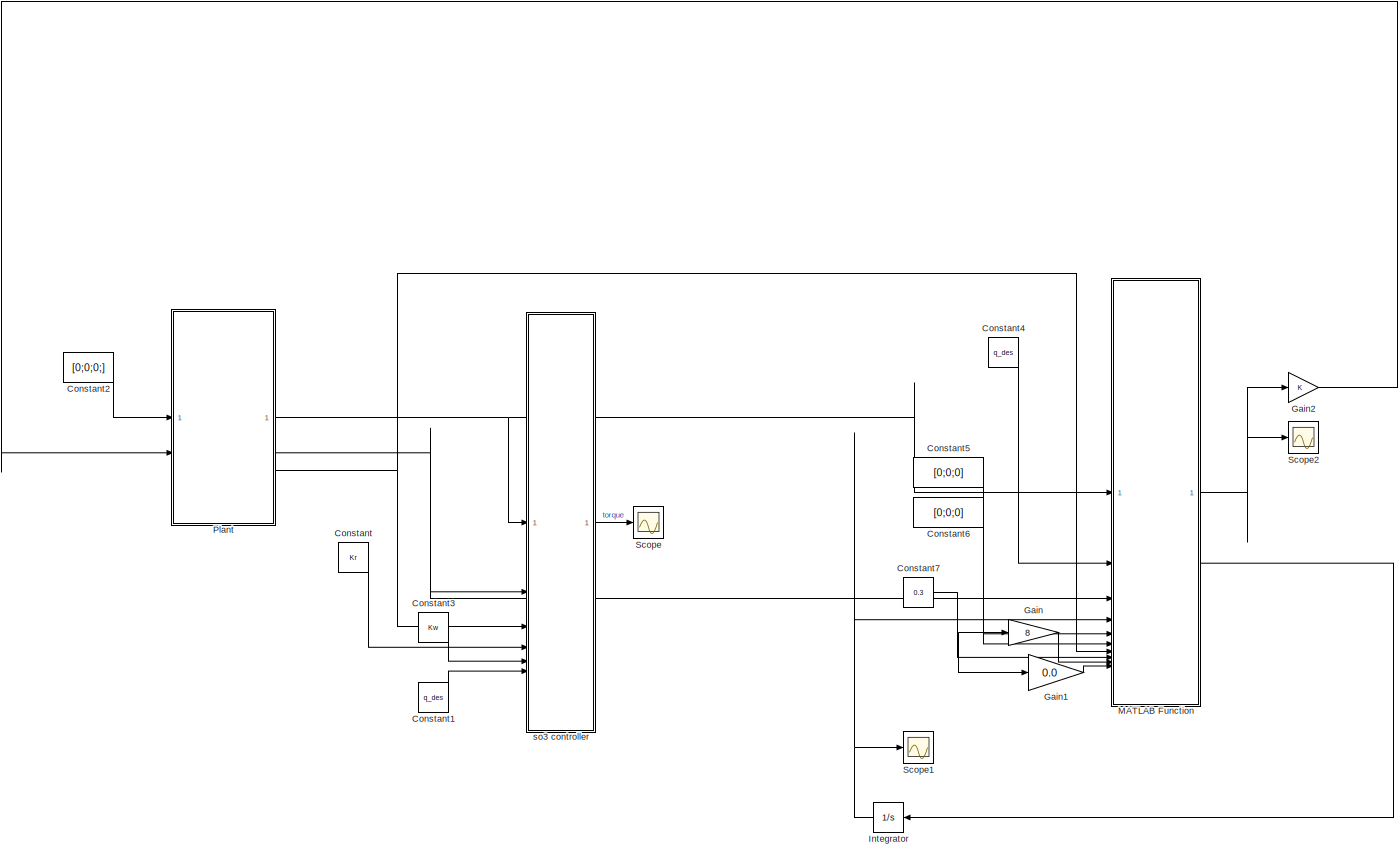
[diagram: root canvas - part 1/1, most of the canvas]
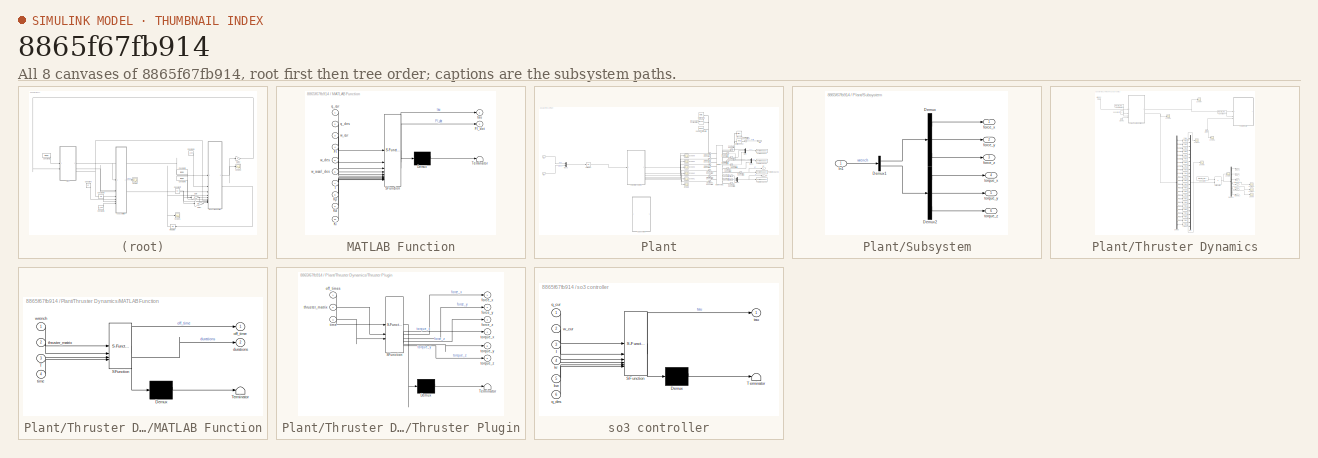
[diagram: thumbnail index - all 8 canvases of the model, root first then tree order]
MODEL slx_8865f67fb914
KIND model
CONFIG AbsTol = auto
CONFIG EnableMultiTasking = off
CONFIG FixedStep = 0.0001
CONFIG MaxStep = auto
CONFIG MinStep = auto
CONFIG RelTol = 1e-3
CONFIG SampleTimeConstraint = Unconstrained
CONFIG SolverName = FixedStepAuto
CONFIG StartTime = 0.0
CONFIG StopTime = 80
BLOCK [Constant] Constant
  Value = Kr
BLOCK [Constant] Constant1
  Value = q_des
BLOCK [Constant] Constant2
  Value = [0;0;0;]
BLOCK [Constant] Constant3
  Value = Kw
BLOCK [Constant] Constant4
  Value = q_des
BLOCK [Constant] Constant5
  Value = [0;0;0]
BLOCK [Constant] Constant6
  Value = [0;0;0]
BLOCK [Constant] Constant7
  Value = 0.3
BLOCK [Gain] Gain
  Gain = 8
BLOCK [Gain] Gain1
  Gain = 0.0
BLOCK [Gain] Gain2
BLOCK [Integrator] Integrator
  InitialCondition = [0;0;0]
  NameLocation = top
BLOCK [SubSystem] MATLAB Function
  ErrorFcn = Stateflow.Translate.translate
  PermitHierarchicalResolution = ExplicitOnly
  SFBlockType = MATLAB Function
  SystemSampleTime = T
  TreatAsAtomicUnit = on
BLOCK [Demux] MATLAB Function/ Demux 
  Outputs = 1
BLOCK [S-Function] MATLAB Function/ SFunction 
  EnableBusSupport = on
  FunctionName = sf_sfun
  PortCounts = [10 3]
  SFcnIsStateOwnerBlock = off
  SFunctionDeploymentMode = off
  Tag = Stateflow S-Function 4
BLOCK [Terminator] MATLAB Function/ Terminator 
BLOCK [Inport] MATLAB Function/FI
  Port = 4
BLOCK [Outport] MATLAB Function/FI_dot
  Port = 2
BLOCK [Inport] MATLAB Function/I
  Port = 7
BLOCK [Inport] MATLAB Function/Kd
  Port = 9
BLOCK [Inport] MATLAB Function/Ki
  Port = 10
BLOCK [Inport] MATLAB Function/Kp
  Port = 8
BLOCK [Inport] MATLAB Function/q_cur
BLOCK [Inport] MATLAB Function/q_des
  Port = 2
BLOCK [Outport] MATLAB Function/tau
BLOCK [Inport] MATLAB Function/w_accel_des
  Port = 6
BLOCK [Inport] MATLAB Function/w_cur
  Port = 3
BLOCK [Inport] MATLAB Function/w_des
  Port = 5
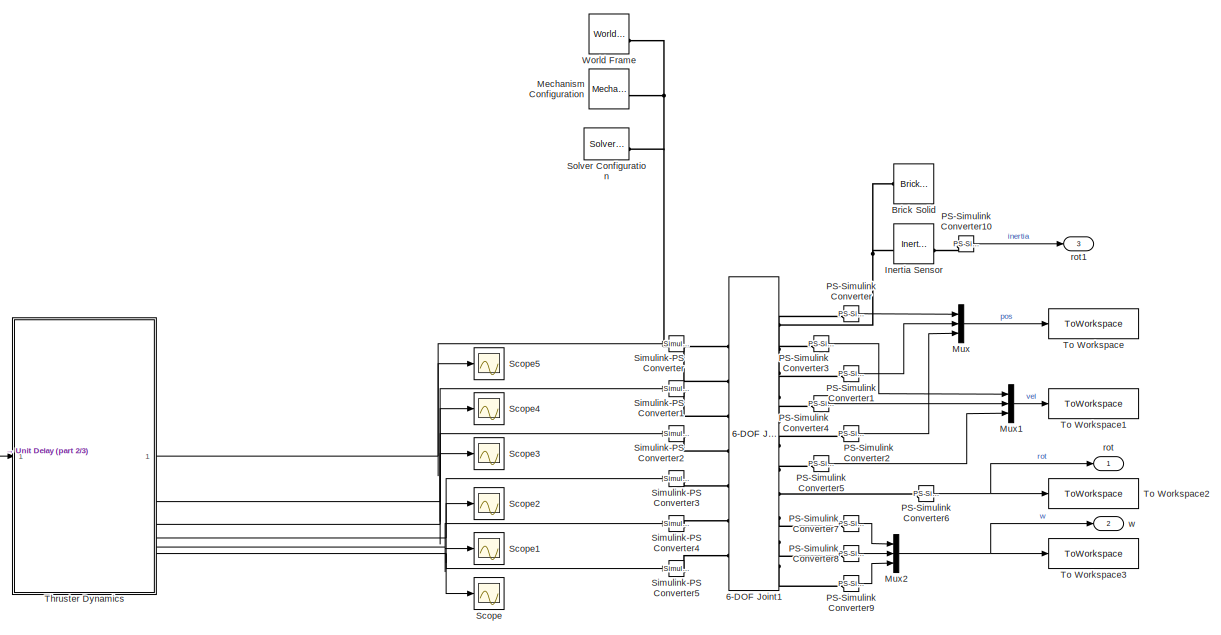
[diagram: Plant - part 1/3, middle right region]
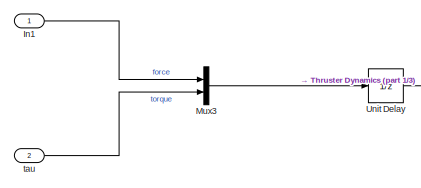
[diagram: Plant - part 2/3, middle left region]
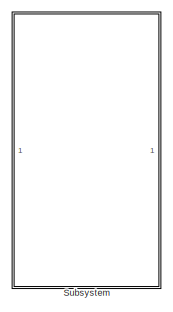
[diagram: Plant - part 3/3, bottom center region]
BLOCK [SubSystem] Plant
BLOCK [Reference] Plant/6-DOF Joint1  REF=sm_lib/Joints/6-DOF Joint
  SourceBlock = sm_lib/Joints/6-DOF Joint
  SourceType = 6-DOF Joint
BLOCK [Reference] Plant/Brick Solid  REF=sm_lib/Body Elements/Brick Solid
  SourceBlock = sm_lib/Body Elements/Brick Solid
  SourceType = Brick Solid
BLOCK [Inport] Plant/In1
  IconDisplay = Signal name
BLOCK [Reference] Plant/Inertia Sensor  REF=sm_lib/Body Elements/Inertia Sensor
  SourceBlock = sm_lib/Body Elements/Inertia Sensor
  SourceType = Inertia Sensor
BLOCK [Reference] Plant/Mechanism Configuration  REF=sm_lib/Utilities/Mechanism
Configuration
  SourceBlock = sm_lib/Utilities/Mechanism\nConfiguration
  SourceType = Mechanism\nConfiguration
BLOCK [Mux] Plant/Mux
  DisplayOption = bar
  Inputs = 3
BLOCK [Mux] Plant/Mux1
  DisplayOption = bar
  Inputs = 3
BLOCK [Mux] Plant/Mux2
  DisplayOption = bar
  Inputs = 3
BLOCK [Mux] Plant/Mux3
  DisplayOption = bar
  Inputs = 2
BLOCK [Reference] Plant/PS-Simulink Converter  REF=nesl_utility/PS-Simulink
Converter
  SourceBlock = nesl_utility/PS-Simulink\nConverter
  SourceType = PS-Simulink\nConverter
BLOCK [Reference] Plant/PS-Simulink Converter1  REF=nesl_utility/PS-Simulink
Converter
  SourceBlock = nesl_utility/PS-Simulink\nConverter
  SourceType = PS-Simulink\nConverter
BLOCK [Reference] Plant/PS-Simulink Converter10  REF=nesl_utility/PS-Simulink
Converter
  SourceBlock = nesl_utility/PS-Simulink\nConverter
  SourceType = PS-Simulink\nConverter
BLOCK [Reference] Plant/PS-Simulink Converter2  REF=nesl_utility/PS-Simulink
Converter
  SourceBlock = nesl_utility/PS-Simulink\nConverter
  SourceType = PS-Simulink\nConverter
BLOCK [Reference] Plant/PS-Simulink Converter3  REF=nesl_utility/PS-Simulink
Converter
  SourceBlock = nesl_utility/PS-Simulink\nConverter
  SourceType = PS-Simulink\nConverter
BLOCK [Reference] Plant/PS-Simulink Converter4  REF=nesl_utility/PS-Simulink
Converter
  SourceBlock = nesl_utility/PS-Simulink\nConverter
  SourceType = PS-Simulink\nConverter
BLOCK [Reference] Plant/PS-Simulink Converter5  REF=nesl_utility/PS-Simulink
Converter
  SourceBlock = nesl_utility/PS-Simulink\nConverter
  SourceType = PS-Simulink\nConverter
BLOCK [Reference] Plant/PS-Simulink Converter6  REF=nesl_utility/PS-Simulink
Converter
  SourceBlock = nesl_utility/PS-Simulink\nConverter
  SourceType = PS-Simulink\nConverter
BLOCK [Reference] Plant/PS-Simulink Converter7  REF=nesl_utility/PS-Simulink
Converter
  SourceBlock = nesl_utility/PS-Simulink\nConverter
  SourceType = PS-Simulink\nConverter
BLOCK [Reference] Plant/PS-Simulink Converter8  REF=nesl_utility/PS-Simulink
Converter
  SourceBlock = nesl_utility/PS-Simulink\nConverter
  SourceType = PS-Simulink\nConverter
BLOCK [Reference] Plant/PS-Simulink Converter9  REF=nesl_utility/PS-Simulink
Converter
  SourceBlock = nesl_utility/PS-Simulink\nConverter
  SourceType = PS-Simulink\nConverter
BLOCK [Scope] Plant/Scope
  Floating = off
  NumInputPorts = 1
  ScopeSpecificationString = Simulink.scopes.TimeScopeBlockCfg('CurrentConfiguration', extmgr.ConfigurationSet(extmgr.Configuration('Core','General UI',true),extmgr.Configuration('Core','Source UI',true),extmgr.Configuration('Sources','WiredSimulink',true,'DataLoggingVariableName','ScopeData1'),extmgr.Configuration('Visuals','Time Domain',true,'SerializedDisplays',{struct('MinYLimReal','-0.04375','MaxYLimReal','0.04375','YLab...<+1509ch>
BLOCK [Scope] Plant/Scope1
  Floating = off
  NumInputPorts = 1
  ScopeSpecificationString = Simulink.scopes.TimeScopeBlockCfg('CurrentConfiguration', extmgr.ConfigurationSet(extmgr.Configuration('Core','General UI',true),extmgr.Configuration('Core','Source UI',true),extmgr.Configuration('Sources','WiredSimulink',true,'DataLoggingVariableName','ScopeData2'),extmgr.Configuration('Visuals','Time Domain',true,'SerializedDisplays',{struct('MinYLimReal','-0.04375','MaxYLimReal','0.04375','YLab...<+1509ch>
BLOCK [Scope] Plant/Scope2
  Floating = off
  NumInputPorts = 1
  ScopeSpecificationString = Simulink.scopes.TimeScopeBlockCfg('CurrentConfiguration', extmgr.ConfigurationSet(extmgr.Configuration('Core','General UI',true),extmgr.Configuration('Core','Source UI',true),extmgr.Configuration('Sources','WiredSimulink',true,'DataLoggingVariableName','ScopeData3'),extmgr.Configuration('Visuals','Time Domain',true,'SerializedDisplays',{struct('MinYLimReal','-0.38663','MaxYLimReal','0.38993','YLab...<+1553ch>
BLOCK [Scope] Plant/Scope3
  Floating = off
  NumInputPorts = 1
  ScopeSpecificationString = Simulink.scopes.TimeScopeBlockCfg('CurrentConfiguration', extmgr.ConfigurationSet(extmgr.Configuration('Core','General UI',true),extmgr.Configuration('Core','Source UI',true),extmgr.Configuration('Sources','WiredSimulink',true,'DataLoggingVariableName','ScopeData4'),extmgr.Configuration('Visuals','Time Domain',true,'SerializedDisplays',{struct('MinYLimReal','-1.00000','MaxYLimReal','1.00000','YLab...<+1522ch>
BLOCK [Scope] Plant/Scope4
  Floating = off
  NumInputPorts = 1
  ScopeSpecificationString = Simulink.scopes.TimeScopeBlockCfg('CurrentConfiguration', extmgr.ConfigurationSet(extmgr.Configuration('Core','General UI',true),extmgr.Configuration('Core','Source UI',true),extmgr.Configuration('Sources','WiredSimulink',true,'DataLoggingVariableName','ScopeData5'),extmgr.Configuration('Visuals','Time Domain',true,'SerializedDisplays',{struct('MinYLimReal','-1.00000','MaxYLimReal','1.00000','YLab...<+1528ch>
BLOCK [Scope] Plant/Scope5
  Floating = off
  NumInputPorts = 1
  ScopeSpecificationString = Simulink.scopes.TimeScopeBlockCfg('CurrentConfiguration', extmgr.ConfigurationSet(extmgr.Configuration('Core','General UI',true),extmgr.Configuration('Core','Source UI',true),extmgr.Configuration('Sources','WiredSimulink',true,'DataLoggingVariableName','ScopeData6'),extmgr.Configuration('Visuals','Time Domain',true,'SerializedDisplays',{struct('MinYLimReal','-1.00000','MaxYLimReal','1.00000','YLab...<+1509ch>
BLOCK [Reference] Plant/Simulink-PS Converter  REF=nesl_utility/Simulink-PS
Converter
  SourceBlock = nesl_utility/Simulink-PS\nConverter
  SourceType = Simulink-PS\nConverter
BLOCK [Reference] Plant/Simulink-PS Converter1  REF=nesl_utility/Simulink-PS
Converter
  SourceBlock = nesl_utility/Simulink-PS\nConverter
  SourceType = Simulink-PS\nConverter
BLOCK [Reference] Plant/Simulink-PS Converter2  REF=nesl_utility/Simulink-PS
Converter
  SourceBlock = nesl_utility/Simulink-PS\nConverter
  SourceType = Simulink-PS\nConverter
BLOCK [Reference] Plant/Simulink-PS Converter3  REF=nesl_utility/Simulink-PS
Converter
  SourceBlock = nesl_utility/Simulink-PS\nConverter
  SourceType = Simulink-PS\nConverter
BLOCK [Reference] Plant/Simulink-PS Converter4  REF=nesl_utility/Simulink-PS
Converter
  SourceBlock = nesl_utility/Simulink-PS\nConverter
  SourceType = Simulink-PS\nConverter
BLOCK [Reference] Plant/Simulink-PS Converter5  REF=nesl_utility/Simulink-PS
Converter
  SourceBlock = nesl_utility/Simulink-PS\nConverter
  SourceType = Simulink-PS\nConverter
BLOCK [Reference] Plant/Solver Configuration  REF=nesl_utility/Solver
Configuration
  SourceBlock = nesl_utility/Solver\nConfiguration
  SourceType = Solver\nConfiguration
BLOCK [SubSystem] Plant/Subsystem
  Commented = on
BLOCK [Demux] Plant/Subsystem/Demux
  Outputs = 3
BLOCK [Demux] Plant/Subsystem/Demux1
  Outputs = 2
BLOCK [Demux] Plant/Subsystem/Demux2
  Outputs = 3
BLOCK [Inport] Plant/Subsystem/In1
  IconDisplay = Signal name
BLOCK [Outport] Plant/Subsystem/force_x
BLOCK [Outport] Plant/Subsystem/force_y
  Port = 2
BLOCK [Outport] Plant/Subsystem/force_z
  Port = 3
BLOCK [Outport] Plant/Subsystem/torque_x
  Port = 4
BLOCK [Outport] Plant/Subsystem/torque_y
  Port = 5
BLOCK [Outport] Plant/Subsystem/torque_z
  Port = 6
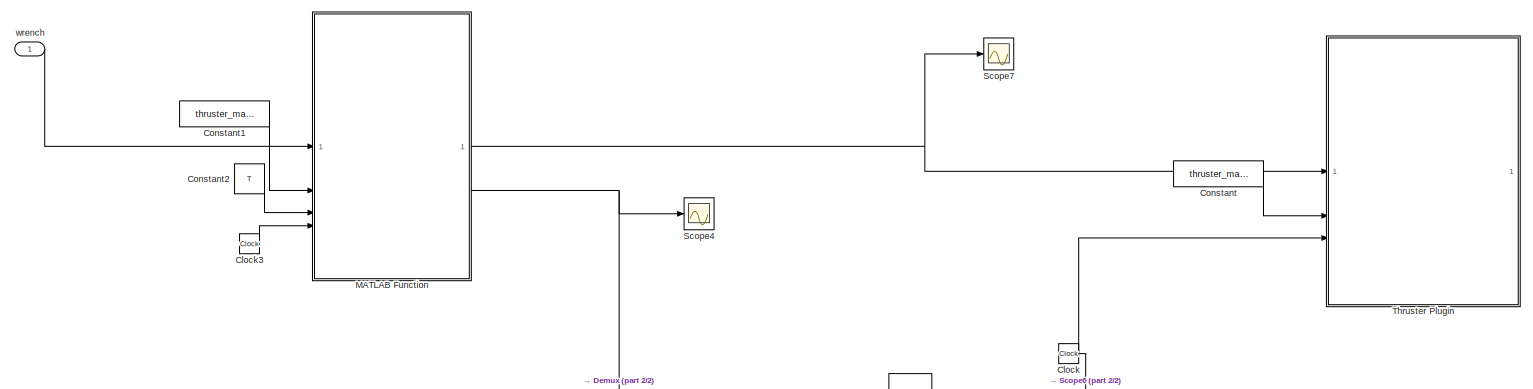
[diagram: Plant/Thruster Dynamics - part 1/2, full width, top band]
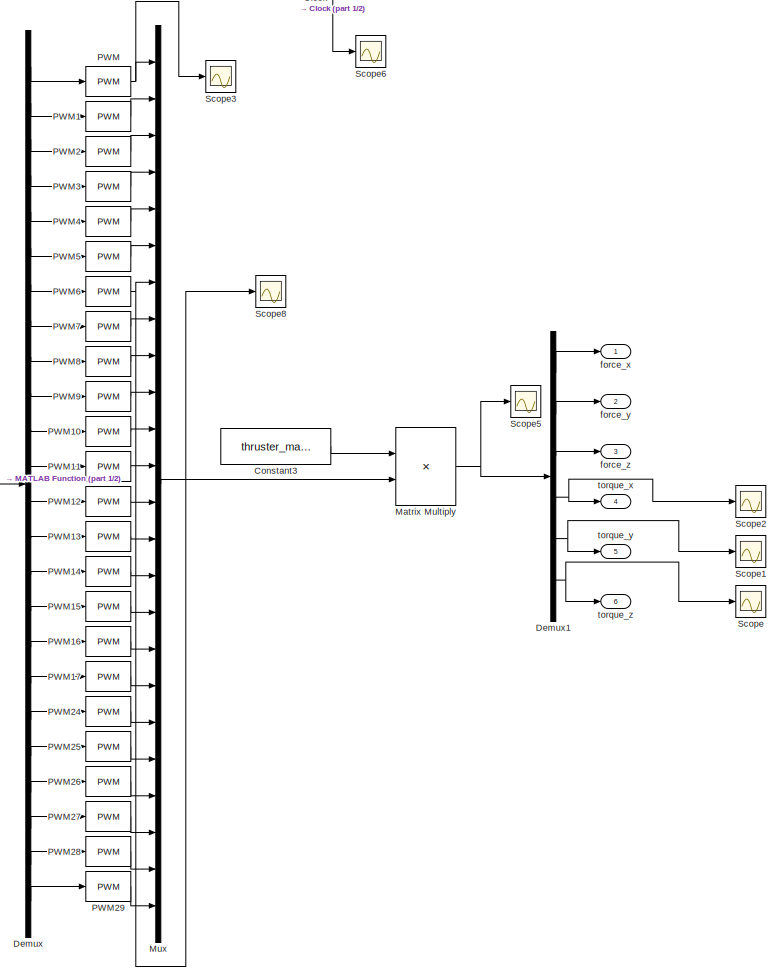
[diagram: Plant/Thruster Dynamics - part 2/2, middle right region]
BLOCK [SubSystem] Plant/Thruster Dynamics
BLOCK [Clock] Plant/Thruster Dynamics/Clock
  Commented = on
BLOCK [Clock] Plant/Thruster Dynamics/Clock3
BLOCK [Constant] Plant/Thruster Dynamics/Constant
  Commented = on
  Value = thruster_matrix
BLOCK [Constant] Plant/Thruster Dynamics/Constant1
  Value = thruster_matrix
BLOCK [Constant] Plant/Thruster Dynamics/Constant2
  Value = T
BLOCK [Constant] Plant/Thruster Dynamics/Constant3
  Value = thruster_matrix
BLOCK [Demux] Plant/Thruster Dynamics/Demux
  Outputs = 24
BLOCK [Demux] Plant/Thruster Dynamics/Demux1
  Outputs = 6
BLOCK [SubSystem] Plant/Thruster Dynamics/MATLAB Function
  ErrorFcn = Stateflow.Translate.translate
  PermitHierarchicalResolution = ExplicitOnly
  SFBlockType = MATLAB Function
  SystemSampleTime = T
  TreatAsAtomicUnit = on
BLOCK [Demux] Plant/Thruster Dynamics/MATLAB Function/ Demux 
  Outputs = 1
BLOCK [S-Function] Plant/Thruster Dynamics/MATLAB Function/ SFunction 
  EnableBusSupport = on
  FunctionName = sf_sfun
  PortCounts = [4 3]
  SFcnIsStateOwnerBlock = off
  SFunctionDeploymentMode = off
  Tag = Stateflow S-Function 3
BLOCK [Terminator] Plant/Thruster Dynamics/MATLAB Function/ Terminator 
BLOCK [Inport] Plant/Thruster Dynamics/MATLAB Function/T
  Port = 3
BLOCK [Outport] Plant/Thruster Dynamics/MATLAB Function/durations
  Port = 2
BLOCK [Outport] Plant/Thruster Dynamics/MATLAB Function/off_time
BLOCK [Inport] Plant/Thruster Dynamics/MATLAB Function/thruster_matrix
  Port = 2
BLOCK [Inport] Plant/Thruster Dynamics/MATLAB Function/time
  Port = 4
BLOCK [Inport] Plant/Thruster Dynamics/MATLAB Function/wrench
BLOCK [Product] Plant/Thruster Dynamics/Matrix Multiply
  Multiplication = Matrix(*)
BLOCK [Mux] Plant/Thruster Dynamics/Mux
  DisplayOption = bar
  Inputs = 24
BLOCK [Reference] Plant/Thruster Dynamics/PWM  REF=simulink/Discontinuities/PWM
  DisableCoverage = on
  SourceBlock = simulink/Discontinuities/PWM
  SourceType = PWM
BLOCK [Reference] Plant/Thruster Dynamics/PWM1  REF=simulink/Discontinuities/PWM
  DisableCoverage = on
  SourceBlock = simulink/Discontinuities/PWM
  SourceType = PWM
BLOCK [Reference] Plant/Thruster Dynamics/PWM10  REF=simulink/Discontinuities/PWM
  DisableCoverage = on
  SourceBlock = simulink/Discontinuities/PWM
  SourceType = PWM
BLOCK [Reference] Plant/Thruster Dynamics/PWM11  REF=simulink/Discontinuities/PWM
  DisableCoverage = on
  SourceBlock = simulink/Discontinuities/PWM
  SourceType = PWM
BLOCK [Reference] Plant/Thruster Dynamics/PWM12  REF=simulink/Discontinuities/PWM
  DisableCoverage = on
  SourceBlock = simulink/Discontinuities/PWM
  SourceType = PWM
BLOCK [Reference] Plant/Thruster Dynamics/PWM13  REF=simulink/Discontinuities/PWM
  DisableCoverage = on
  SourceBlock = simulink/Discontinuities/PWM
  SourceType = PWM
BLOCK [Reference] Plant/Thruster Dynamics/PWM14  REF=simulink/Discontinuities/PWM
  DisableCoverage = on
  SourceBlock = simulink/Discontinuities/PWM
  SourceType = PWM
BLOCK [Reference] Plant/Thruster Dynamics/PWM15  REF=simulink/Discontinuities/PWM
  DisableCoverage = on
  SourceBlock = simulink/Discontinuities/PWM
  SourceType = PWM
BLOCK [Reference] Plant/Thruster Dynamics/PWM16  REF=simulink/Discontinuities/PWM
  DisableCoverage = on
  SourceBlock = simulink/Discontinuities/PWM
  SourceType = PWM
BLOCK [Reference] Plant/Thruster Dynamics/PWM17  REF=simulink/Discontinuities/PWM
  DisableCoverage = on
  SourceBlock = simulink/Discontinuities/PWM
  SourceType = PWM
BLOCK [Reference] Plant/Thruster Dynamics/PWM2  REF=simulink/Discontinuities/PWM
  DisableCoverage = on
  SourceBlock = simulink/Discontinuities/PWM
  SourceType = PWM
BLOCK [Reference] Plant/Thruster Dynamics/PWM24  REF=simulink/Discontinuities/PWM
  DisableCoverage = on
  SourceBlock = simulink/Discontinuities/PWM
  SourceType = PWM
BLOCK [Reference] Plant/Thruster Dynamics/PWM25  REF=simulink/Discontinuities/PWM
  DisableCoverage = on
  SourceBlock = simulink/Discontinuities/PWM
  SourceType = PWM
BLOCK [Reference] Plant/Thruster Dynamics/PWM26  REF=simulink/Discontinuities/PWM
  DisableCoverage = on
  SourceBlock = simulink/Discontinuities/PWM
  SourceType = PWM
BLOCK [Reference] Plant/Thruster Dynamics/PWM27  REF=simulink/Discontinuities/PWM
  DisableCoverage = on
  SourceBlock = simulink/Discontinuities/PWM
  SourceType = PWM
BLOCK [Reference] Plant/Thruster Dynamics/PWM28  REF=simulink/Discontinuities/PWM
  DisableCoverage = on
  SourceBlock = simulink/Discontinuities/PWM
  SourceType = PWM
BLOCK [Reference] Plant/Thruster Dynamics/PWM29  REF=simulink/Discontinuities/PWM
  DisableCoverage = on
  SourceBlock = simulink/Discontinuities/PWM
  SourceType = PWM
BLOCK [Reference] Plant/Thruster Dynamics/PWM3  REF=simulink/Discontinuities/PWM
  DisableCoverage = on
  SourceBlock = simulink/Discontinuities/PWM
  SourceType = PWM
BLOCK [Reference] Plant/Thruster Dynamics/PWM4  REF=simulink/Discontinuities/PWM
  DisableCoverage = on
  SourceBlock = simulink/Discontinuities/PWM
  SourceType = PWM
BLOCK [Reference] Plant/Thruster Dynamics/PWM5  REF=simulink/Discontinuities/PWM
  DisableCoverage = on
  SourceBlock = simulink/Discontinuities/PWM
  SourceType = PWM
BLOCK [Reference] Plant/Thruster Dynamics/PWM6  REF=simulink/Discontinuities/PWM
  DisableCoverage = on
  SourceBlock = simulink/Discontinuities/PWM
  SourceType = PWM
BLOCK [Reference] Plant/Thruster Dynamics/PWM7  REF=simulink/Discontinuities/PWM
  DisableCoverage = on
  SourceBlock = simulink/Discontinuities/PWM
  SourceType = PWM
BLOCK [Reference] Plant/Thruster Dynamics/PWM8  REF=simulink/Discontinuities/PWM
  DisableCoverage = on
  SourceBlock = simulink/Discontinuities/PWM
  SourceType = PWM
BLOCK [Reference] Plant/Thruster Dynamics/PWM9  REF=simulink/Discontinuities/PWM
  DisableCoverage = on
  SourceBlock = simulink/Discontinuities/PWM
  SourceType = PWM
BLOCK [Scope] Plant/Thruster Dynamics/Scope
  Floating = off
  NumInputPorts = 1
  ScopeSpecificationString = Simulink.scopes.TimeScopeBlockCfg('CurrentConfiguration', extmgr.ConfigurationSet(extmgr.Configuration('Core','General UI',true),extmgr.Configuration('Core','Source UI',true),extmgr.Configuration('Sources','WiredSimulink',true,'DataLoggingVariableName','ScopeData3'),extmgr.Configuration('Visuals','Time Domain',true,'SerializedDisplays',{struct('MinYLimReal','-0.04375','MaxYLimReal','0.04375','YLab...<+1498ch>
BLOCK [Scope] Plant/Thruster Dynamics/Scope1
  Floating = off
  NumInputPorts = 1
  ScopeSpecificationString = Simulink.scopes.TimeScopeBlockCfg('CurrentConfiguration', extmgr.ConfigurationSet(extmgr.Configuration('Core','General UI',true),extmgr.Configuration('Core','Source UI',true),extmgr.Configuration('Sources','WiredSimulink',true,'DataLoggingVariableName','ScopeData4'),extmgr.Configuration('Visuals','Time Domain',true,'SerializedDisplays',{struct('MinYLimReal','-0.04375','MaxYLimReal','0.04375','YLab...<+1498ch>
BLOCK [Scope] Plant/Thruster Dynamics/Scope2
  Floating = off
  NumInputPorts = 1
  ScopeSpecificationString = Simulink.scopes.TimeScopeBlockCfg('CurrentConfiguration', extmgr.ConfigurationSet(extmgr.Configuration('Core','General UI',true),extmgr.Configuration('Core','Source UI',true),extmgr.Configuration('Sources','WiredSimulink',true,'DataLoggingVariableName','ScopeData5'),extmgr.Configuration('Visuals','Time Domain',true,'SerializedDisplays',{struct('MinYLimReal','-0.04375','MaxYLimReal','0.04375','YLab...<+1498ch>
BLOCK [Scope] Plant/Thruster Dynamics/Scope3
  Floating = off
  NumInputPorts = 1
  ScopeSpecificationString = Simulink.scopes.TimeScopeBlockCfg('CurrentConfiguration', extmgr.ConfigurationSet(extmgr.Configuration('Core','General UI',true),extmgr.Configuration('Core','Source UI',true),extmgr.Configuration('Sources','WiredSimulink',true,'DataLoggingVariableName','ScopeData6'),extmgr.Configuration('Visuals','Time Domain',true,'SerializedDisplays',{struct('MinYLimReal','-0.125','MaxYLimReal','1.125','YLabelRe...<+1494ch>
BLOCK [Scope] Plant/Thruster Dynamics/Scope4
  Floating = off
  NumInputPorts = 1
  ScopeSpecificationString = Simulink.scopes.TimeScopeBlockCfg('CurrentConfiguration', extmgr.ConfigurationSet(extmgr.Configuration('Core','General UI',true),extmgr.Configuration('Core','Source UI',true),extmgr.Configuration('Sources','WiredSimulink',true,'DataLoggingVariableName','ScopeData7'),extmgr.Configuration('Visuals','Time Domain',true,'SerializedDisplays',{struct('MinYLimReal','-0.00437','MaxYLimReal','0.03937','YLab...<+2234ch>
BLOCK [Scope] Plant/Thruster Dynamics/Scope5
  Floating = off
  NumInputPorts = 1
  ScopeSpecificationString = Simulink.scopes.TimeScopeBlockCfg('CurrentConfiguration', extmgr.ConfigurationSet(extmgr.Configuration('Core','General UI',true),extmgr.Configuration('Core','Source UI',true),extmgr.Configuration('Sources','WiredSimulink',true,'DataLoggingVariableName','ScopeData8'),extmgr.Configuration('Visuals','Time Domain',true,'SerializedDisplays',{struct('MinYLimReal','-0.04375','MaxYLimReal','0.04375','YLab...<+1620ch>
BLOCK [Scope] Plant/Thruster Dynamics/Scope6
  Commented = on
  Floating = off
  NumInputPorts = 1
  ScopeSpecificationString = Simulink.scopes.TimeScopeBlockCfg('CurrentConfiguration', extmgr.ConfigurationSet(extmgr.Configuration('Core','General UI',true),extmgr.Configuration('Core','Source UI',true),extmgr.Configuration('Sources','WiredSimulink',true,'DataLoggingVariableName','ScopeData7'),extmgr.Configuration('Visuals','Time Domain',true,'SerializedDisplays',{struct('MinYLimReal','-1.25','MaxYLimReal','11.25','YLabelRea...<+1481ch>
BLOCK [Scope] Plant/Thruster Dynamics/Scope7
  Commented = on
  Floating = off
  NumInputPorts = 1
  ScopeSpecificationString = Simulink.scopes.TimeScopeBlockCfg('CurrentConfiguration', extmgr.ConfigurationSet(extmgr.Configuration('Core','General UI',true),extmgr.Configuration('Core','Source UI',true),extmgr.Configuration('Sources','WiredSimulink',true,'DataLoggingVariableName','ScopeData8'),extmgr.Configuration('Visuals','Time Domain',true),extmgr.Configuration('Tools','Plot Navigation',true),extmgr.Configuration('Tools',...<+40ch>
BLOCK [Scope] Plant/Thruster Dynamics/Scope8
  Floating = off
  NumInputPorts = 1
  ScopeSpecificationString = Simulink.scopes.TimeScopeBlockCfg('CurrentConfiguration', extmgr.ConfigurationSet(extmgr.Configuration('Core','General UI',true),extmgr.Configuration('Core','Source UI',true),extmgr.Configuration('Sources','WiredSimulink',true,'DataLoggingVariableName','ScopeData9'),extmgr.Configuration('Visuals','Time Domain',true,'SerializedDisplays',{struct('MinYLimReal','-1.00000','MaxYLimReal','1.00000','YLab...<+1506ch>
BLOCK [SubSystem] Plant/Thruster Dynamics/Thruster Plugin
  Commented = on
  ErrorFcn = Stateflow.Translate.translate
  PermitHierarchicalResolution = ExplicitOnly
  SFBlockType = MATLAB Function
  TreatAsAtomicUnit = on
BLOCK [Demux] Plant/Thruster Dynamics/Thruster Plugin/ Demux 
  Outputs = 1
BLOCK [S-Function] Plant/Thruster Dynamics/Thruster Plugin/ SFunction 
  EnableBusSupport = on
  FunctionName = sf_sfun
  PortCounts = [3 7]
  SFcnIsStateOwnerBlock = off
  SFunctionDeploymentMode = off
  Tag = Stateflow S-Function 1
BLOCK [Terminator] Plant/Thruster Dynamics/Thruster Plugin/ Terminator 
BLOCK [Outport] Plant/Thruster Dynamics/Thruster Plugin/force_x
BLOCK [Outport] Plant/Thruster Dynamics/Thruster Plugin/force_y
  Port = 2
BLOCK [Outport] Plant/Thruster Dynamics/Thruster Plugin/force_z
  Port = 3
BLOCK [Inport] Plant/Thruster Dynamics/Thruster Plugin/off_times
BLOCK [Inport] Plant/Thruster Dynamics/Thruster Plugin/thruster_matrix
  Port = 2
BLOCK [Inport] Plant/Thruster Dynamics/Thruster Plugin/time
  Port = 3
BLOCK [Outport] Plant/Thruster Dynamics/Thruster Plugin/torque_x
  Port = 4
BLOCK [Outport] Plant/Thruster Dynamics/Thruster Plugin/torque_y
  Port = 5
BLOCK [Outport] Plant/Thruster Dynamics/Thruster Plugin/torque_z
  Port = 6
BLOCK [Outport] Plant/Thruster Dynamics/force_x
BLOCK [Outport] Plant/Thruster Dynamics/force_y
  Port = 2
BLOCK [Outport] Plant/Thruster Dynamics/force_z
  Port = 3
BLOCK [Outport] Plant/Thruster Dynamics/torque_x
  Port = 4
BLOCK [Outport] Plant/Thruster Dynamics/torque_y
  Port = 5
BLOCK [Outport] Plant/Thruster Dynamics/torque_z
  Port = 6
BLOCK [Inport] Plant/Thruster Dynamics/wrench
BLOCK [ToWorkspace] Plant/To Workspace
  FixptAsFi = on
  MaxDataPoints = inf
  SampleTime = -1
  VariableName = position
BLOCK [ToWorkspace] Plant/To Workspace1
  FixptAsFi = on
  MaxDataPoints = inf
  SampleTime = -1
  VariableName = velocity
BLOCK [ToWorkspace] Plant/To Workspace2
  FixptAsFi = on
  MaxDataPoints = inf
  SampleTime = -1
  VariableName = orientation
BLOCK [ToWorkspace] Plant/To Workspace3
  FixptAsFi = on
  MaxDataPoints = inf
  SampleTime = -1
  VariableName = angular_velocity
BLOCK [UnitDelay] Plant/Unit Delay
  HasFrameUpgradeWarning = on
  SampleTime = -1
BLOCK [Reference] Plant/World Frame  REF=sm_lib/Frames and
Transforms/World Frame
  SourceBlock = sm_lib/Frames and\nTransforms/World Frame
  SourceType = World Frame
BLOCK [Outport] Plant/rot
  IconDisplay = Signal name
BLOCK [Outport] Plant/rot1
  IconDisplay = Signal name
  Port = 3
BLOCK [Inport] Plant/tau
  IconDisplay = Signal name
  Port = 2
BLOCK [Outport] Plant/w
  IconDisplay = Signal name
  Port = 2
BLOCK [Scope] Scope
  Floating = off
  NumInputPorts = 1
  ScopeSpecificationString = Simulink.scopes.TimeScopeBlockCfg('CurrentConfiguration', extmgr.ConfigurationSet(extmgr.Configuration('Core','General UI',true),extmgr.Configuration('Core','Source UI',true),extmgr.Configuration('Sources','WiredSimulink',true),extmgr.Configuration('Visuals','Time Domain',true),extmgr.Configuration('Tools','Plot Navigation',true),extmgr.Configuration('Tools','Measurements',true)),'Version','2024b'...<+1ch>
BLOCK [Scope] Scope1
  Floating = off
  NumInputPorts = 1
  ScopeSpecificationString = Simulink.scopes.TimeScopeBlockCfg('CurrentConfiguration', extmgr.ConfigurationSet(extmgr.Configuration('Core','General UI',true),extmgr.Configuration('Core','Source UI',true),extmgr.Configuration('Sources','WiredSimulink',true,'DataLoggingVariableName','ScopeData1'),extmgr.Configuration('Visuals','Time Domain',true,'SerializedDisplays',{struct('MinYLimReal','-1033.14745','MaxYLimReal','990.23591',...<+1578ch>
BLOCK [Scope] Scope2
  Floating = off
  NumInputPorts = 1
  ScopeSpecificationString = Simulink.scopes.TimeScopeBlockCfg('CurrentConfiguration', extmgr.ConfigurationSet(extmgr.Configuration('Core','General UI',true),extmgr.Configuration('Core','Source UI',true),extmgr.Configuration('Sources','WiredSimulink',true,'DataLoggingVariableName','ScopeData2'),extmgr.Configuration('Visuals','Time Domain',true,'SerializedDisplays',{struct('MinYLimReal','-0.06436','MaxYLimReal','0.22829','YLab...<+1585ch>
BLOCK [SubSystem] so3 controller
  Commented = on
  ErrorFcn = Stateflow.Translate.translate
  PermitHierarchicalResolution = ExplicitOnly
  SFBlockType = MATLAB Function
  TreatAsAtomicUnit = on
BLOCK [Demux] so3 controller/ Demux 
  Outputs = 1
BLOCK [S-Function] so3 controller/ SFunction 
  EnableBusSupport = on
  FunctionName = sf_sfun
  PortCounts = [6 2]
  SFcnIsStateOwnerBlock = off
  SFunctionDeploymentMode = off
  Tag = Stateflow S-Function 2
BLOCK [Terminator] so3 controller/ Terminator 
BLOCK [Inport] so3 controller/I
  Port = 3
BLOCK [Inport] so3 controller/kr
  Port = 4
BLOCK [Inport] so3 controller/kw
  Port = 5
BLOCK [Inport] so3 controller/q_cur
BLOCK [Inport] so3 controller/q_des
  Port = 6
BLOCK [Outport] so3 controller/tau
BLOCK [Inport] so3 controller/w_cur
  Port = 2
LINE Constant1:1 -> so3 controller:6
LINE Constant2:1 -> Plant:1
LINE Constant3:1 -> so3 controller:5
LINE Constant4:1 -> MATLAB Function:2
LINE Constant5:1 -> MATLAB Function:5
LINE Constant6:1 -> MATLAB Function:6
NET Constant7:1 -> Gain1:1, Gain:1, MATLAB Function:8
LINE Constant:1 -> so3 controller:4
LINE Gain1:1 -> MATLAB Function:10
LINE Gain2:1 -> Plant:2
LINE Gain:1 -> MATLAB Function:9
NET Integrator:1 -> MATLAB Function:4, Scope1:1
NET MATLAB Function:1 -> Gain2:1, Scope2:1
LINE MATLAB Function:2 -> Integrator:1
LINE Plant/In1:1 -> Plant/Mux3:1
LINE Plant/Mux1:1 -> Plant/To Workspace1:1
NET Plant/Mux2:1 -> Plant/To Workspace3:1, Plant/w:1
LINE Plant/Mux3:1 -> Plant/Unit Delay:1
LINE Plant/Mux:1 -> Plant/To Workspace:1
LINE Plant/PS-Simulink Converter10:1 -> Plant/rot1:1
LINE Plant/PS-Simulink Converter1:1 -> Plant/Mux:2
LINE Plant/PS-Simulink Converter2:1 -> Plant/Mux:3
LINE Plant/PS-Simulink Converter3:1 -> Plant/Mux1:1
LINE Plant/PS-Simulink Converter4:1 -> Plant/Mux1:2
LINE Plant/PS-Simulink Converter5:1 -> Plant/Mux1:3
NET Plant/PS-Simulink Converter6:1 -> Plant/To Workspace2:1, Plant/rot:1
LINE Plant/PS-Simulink Converter7:1 -> Plant/Mux2:1
LINE Plant/PS-Simulink Converter8:1 -> Plant/Mux2:2
LINE Plant/PS-Simulink Converter9:1 -> Plant/Mux2:3
LINE Plant/PS-Simulink Converter:1 -> Plant/Mux:1
LINE Plant/Subsystem/Demux1:1 -> Plant/Subsystem/Demux:1
LINE Plant/Subsystem/Demux1:2 -> Plant/Subsystem/Demux2:1
LINE Plant/Subsystem/Demux2:1 -> Plant/Subsystem/torque_x:1
LINE Plant/Subsystem/Demux2:2 -> Plant/Subsystem/torque_y:1
LINE Plant/Subsystem/Demux2:3 -> Plant/Subsystem/torque_z:1
LINE Plant/Subsystem/Demux:1 -> Plant/Subsystem/force_x:1
LINE Plant/Subsystem/Demux:2 -> Plant/Subsystem/force_y:1
LINE Plant/Subsystem/Demux:3 -> Plant/Subsystem/force_z:1
LINE Plant/Subsystem/In1:1 -> Plant/Subsystem/Demux1:1
LINE Plant/Thruster Dynamics/Clock3:1 -> Plant/Thruster Dynamics/MATLAB Function:4
NET Plant/Thruster Dynamics/Clock:1 -> Plant/Thruster Dynamics/Scope6:1, Plant/Thruster Dynamics/Thruster Plugin:3
LINE Plant/Thruster Dynamics/Constant1:1 -> Plant/Thruster Dynamics/MATLAB Function:2
LINE Plant/Thruster Dynamics/Constant2:1 -> Plant/Thruster Dynamics/MATLAB Function:3
LINE Plant/Thruster Dynamics/Constant3:1 -> Plant/Thruster Dynamics/Matrix Multiply:1
LINE Plant/Thruster Dynamics/Constant:1 -> Plant/Thruster Dynamics/Thruster Plugin:2
LINE Plant/Thruster Dynamics/Demux1:1 -> Plant/Thruster Dynamics/force_x:1
LINE Plant/Thruster Dynamics/Demux1:2 -> Plant/Thruster Dynamics/force_y:1
LINE Plant/Thruster Dynamics/Demux1:3 -> Plant/Thruster Dynamics/force_z:1
NET Plant/Thruster Dynamics/Demux1:4 -> Plant/Thruster Dynamics/Scope2:1, Plant/Thruster Dynamics/torque_x:1
NET Plant/Thruster Dynamics/Demux1:5 -> Plant/Thruster Dynamics/Scope1:1, Plant/Thruster Dynamics/torque_y:1
NET Plant/Thruster Dynamics/Demux1:6 -> Plant/Thruster Dynamics/Scope:1, Plant/Thruster Dynamics/torque_z:1
LINE Plant/Thruster Dynamics/Demux:1 -> Plant/Thruster Dynamics/PWM:1
LINE Plant/Thruster Dynamics/Demux:10 -> Plant/Thruster Dynamics/PWM9:1
LINE Plant/Thruster Dynamics/Demux:11 -> Plant/Thruster Dynamics/PWM10:1
LINE Plant/Thruster Dynamics/Demux:12 -> Plant/Thruster Dynamics/PWM11:1
LINE Plant/Thruster Dynamics/Demux:13 -> Plant/Thruster Dynamics/PWM12:1
LINE Plant/Thruster Dynamics/Demux:14 -> Plant/Thruster Dynamics/PWM13:1
LINE Plant/Thruster Dynamics/Demux:15 -> Plant/Thruster Dynamics/PWM14:1
LINE Plant/Thruster Dynamics/Demux:16 -> Plant/Thruster Dynamics/PWM15:1
LINE Plant/Thruster Dynamics/Demux:17 -> Plant/Thruster Dynamics/PWM16:1
LINE Plant/Thruster Dynamics/Demux:18 -> Plant/Thruster Dynamics/PWM17:1
LINE Plant/Thruster Dynamics/Demux:19 -> Plant/Thruster Dynamics/PWM24:1
LINE Plant/Thruster Dynamics/Demux:2 -> Plant/Thruster Dynamics/PWM1:1
LINE Plant/Thruster Dynamics/Demux:20 -> Plant/Thruster Dynamics/PWM25:1
LINE Plant/Thruster Dynamics/Demux:21 -> Plant/Thruster Dynamics/PWM26:1
LINE Plant/Thruster Dynamics/Demux:22 -> Plant/Thruster Dynamics/PWM27:1
LINE Plant/Thruster Dynamics/Demux:23 -> Plant/Thruster Dynamics/PWM28:1
LINE Plant/Thruster Dynamics/Demux:24 -> Plant/Thruster Dynamics/PWM29:1
LINE Plant/Thruster Dynamics/Demux:3 -> Plant/Thruster Dynamics/PWM2:1
LINE Plant/Thruster Dynamics/Demux:4 -> Plant/Thruster Dynamics/PWM3:1
LINE Plant/Thruster Dynamics/Demux:5 -> Plant/Thruster Dynamics/PWM4:1
LINE Plant/Thruster Dynamics/Demux:6 -> Plant/Thruster Dynamics/PWM5:1
LINE Plant/Thruster Dynamics/Demux:7 -> Plant/Thruster Dynamics/PWM6:1
LINE Plant/Thruster Dynamics/Demux:8 -> Plant/Thruster Dynamics/PWM7:1
LINE Plant/Thruster Dynamics/Demux:9 -> Plant/Thruster Dynamics/PWM8:1
NET Plant/Thruster Dynamics/MATLAB Function:1 -> Plant/Thruster Dynamics/Scope7:1, Plant/Thruster Dynamics/Thruster Plugin:1
NET Plant/Thruster Dynamics/MATLAB Function:2 -> Plant/Thruster Dynamics/Demux:1, Plant/Thruster Dynamics/Scope4:1
NET Plant/Thruster Dynamics/Matrix Multiply:1 -> Plant/Thruster Dynamics/Demux1:1, Plant/Thruster Dynamics/Scope5:1
LINE Plant/Thruster Dynamics/Mux:1 -> Plant/Thruster Dynamics/Matrix Multiply:2
LINE Plant/Thruster Dynamics/PWM10:1 -> Plant/Thruster Dynamics/Mux:11
LINE Plant/Thruster Dynamics/PWM11:1 -> Plant/Thruster Dynamics/Mux:12
LINE Plant/Thruster Dynamics/PWM12:1 -> Plant/Thruster Dynamics/Mux:13
LINE Plant/Thruster Dynamics/PWM13:1 -> Plant/Thruster Dynamics/Mux:14
LINE Plant/Thruster Dynamics/PWM14:1 -> Plant/Thruster Dynamics/Mux:15
LINE Plant/Thruster Dynamics/PWM15:1 -> Plant/Thruster Dynamics/Mux:16
LINE Plant/Thruster Dynamics/PWM16:1 -> Plant/Thruster Dynamics/Mux:17
LINE Plant/Thruster Dynamics/PWM17:1 -> Plant/Thruster Dynamics/Mux:18
LINE Plant/Thruster Dynamics/PWM1:1 -> Plant/Thruster Dynamics/Mux:2
LINE Plant/Thruster Dynamics/PWM24:1 -> Plant/Thruster Dynamics/Mux:19
LINE Plant/Thruster Dynamics/PWM25:1 -> Plant/Thruster Dynamics/Mux:20
LINE Plant/Thruster Dynamics/PWM26:1 -> Plant/Thruster Dynamics/Mux:21
LINE Plant/Thruster Dynamics/PWM27:1 -> Plant/Thruster Dynamics/Mux:22
LINE Plant/Thruster Dynamics/PWM28:1 -> Plant/Thruster Dynamics/Mux:23
LINE Plant/Thruster Dynamics/PWM29:1 -> Plant/Thruster Dynamics/Mux:24
LINE Plant/Thruster Dynamics/PWM2:1 -> Plant/Thruster Dynamics/Mux:3
LINE Plant/Thruster Dynamics/PWM3:1 -> Plant/Thruster Dynamics/Mux:4
LINE Plant/Thruster Dynamics/PWM4:1 -> Plant/Thruster Dynamics/Mux:5
LINE Plant/Thruster Dynamics/PWM5:1 -> Plant/Thruster Dynamics/Mux:6
NET Plant/Thruster Dynamics/PWM6:1 -> Plant/Thruster Dynamics/Mux:7, Plant/Thruster Dynamics/Scope8:1
LINE Plant/Thruster Dynamics/PWM7:1 -> Plant/Thruster Dynamics/Mux:8
LINE Plant/Thruster Dynamics/PWM8:1 -> Plant/Thruster Dynamics/Mux:9
LINE Plant/Thruster Dynamics/PWM9:1 -> Plant/Thruster Dynamics/Mux:10
NET Plant/Thruster Dynamics/PWM:1 -> Plant/Thruster Dynamics/Mux:1, Plant/Thruster Dynamics/Scope3:1
LINE Plant/Thruster Dynamics/wrench:1 -> Plant/Thruster Dynamics/MATLAB Function:1
NET Plant/Thruster Dynamics:1 -> Plant/Scope5:1, Plant/Simulink-PS Converter:1
NET Plant/Thruster Dynamics:2 -> Plant/Scope4:1, Plant/Simulink-PS Converter1:1
NET Plant/Thruster Dynamics:3 -> Plant/Scope3:1, Plant/Simulink-PS Converter2:1
NET Plant/Thruster Dynamics:4 -> Plant/Scope2:1, Plant/Simulink-PS Converter3:1
NET Plant/Thruster Dynamics:5 -> Plant/Scope1:1, Plant/Simulink-PS Converter4:1
NET Plant/Thruster Dynamics:6 -> Plant/Scope:1, Plant/Simulink-PS Converter5:1
LINE Plant/Unit Delay:1 -> Plant/Thruster Dynamics:1
LINE Plant/tau:1 -> Plant/Mux3:2
NET Plant:1 -> MATLAB Function:1, so3 controller:1
NET Plant:2 -> MATLAB Function:3, so3 controller:2
NET Plant:3 -> MATLAB Function:7, so3 controller:3
LINE so3 controller:1 -> Scope:1
PNET net1: Plant/6-DOF Joint1:LConn1 -- Plant/Mechanism Configuration:RConn1 -- Plant/Solver Configuration:RConn1 -- Plant/World Frame:RConn1
PLINE Plant/6-DOF Joint1:LConn2 -- Plant/Simulink-PS Converter:RConn1
PLINE Plant/6-DOF Joint1:LConn3 -- Plant/Simulink-PS Converter1:RConn1
PLINE Plant/6-DOF Joint1:LConn4 -- Plant/Simulink-PS Converter2:RConn1
PLINE Plant/6-DOF Joint1:LConn5 -- Plant/Simulink-PS Converter3:RConn1
PLINE Plant/6-DOF Joint1:LConn6 -- Plant/Simulink-PS Converter4:RConn1
PLINE Plant/6-DOF Joint1:LConn7 -- Plant/Simulink-PS Converter5:RConn1
PNET net2: Plant/6-DOF Joint1:RConn1 -- Plant/Brick Solid:LConn1 -- Plant/Inertia Sensor:LConn1
PLINE Plant/6-DOF Joint1:RConn10 -- Plant/PS-Simulink Converter8:LConn1
PLINE Plant/6-DOF Joint1:RConn11 -- Plant/PS-Simulink Converter9:LConn1
PLINE Plant/6-DOF Joint1:RConn2 -- Plant/PS-Simulink Converter:LConn1
PLINE Plant/6-DOF Joint1:RConn3 -- Plant/PS-Simulink Converter3:LConn1
PLINE Plant/6-DOF Joint1:RConn4 -- Plant/PS-Simulink Converter1:LConn1
PLINE Plant/6-DOF Joint1:RConn5 -- Plant/PS-Simulink Converter4:LConn1
PLINE Plant/6-DOF Joint1:RConn6 -- Plant/PS-Simulink Converter2:LConn1
PLINE Plant/6-DOF Joint1:RConn7 -- Plant/PS-Simulink Converter5:LConn1
PLINE Plant/6-DOF Joint1:RConn8 -- Plant/PS-Simulink Converter6:LConn1
PLINE Plant/6-DOF Joint1:RConn9 -- Plant/PS-Simulink Converter7:LConn1
PLINE Plant/Inertia Sensor:RConn1 -- Plant/PS-Simulink Converter10:LConn1
note: NET lines group one-source signal fan-out (src -> all destinations, sorted); 1:1 wires keep LINE; PNET lines group multi-terminal physical nets as a canonical sorted terminal list (undirected conserving connections); 2-terminal nets keep the pairwise PLINE form
CHART Plant/Thruster Dynamics/Thruster Plugin states=1 transitions=1
  STATE_LABEL 'eML_blk_kernel()'
  STATE_LABEL 'SCRIPT:\nfunction [force_x, force_y, force_z, torque_x, torque_y, torque_z]= fcn(off_times, thruster_matrix, time)\n\nn_thrusters = length(off_times);\nfiring_thrusters = zeros(n_thrusters, n_thrusters);\n\nfor i = 1:n_thrusters\n    % disable thruster if it should not be fired\n    if off_times(i) > (time+0.002)\n        firing_thrusters(i, i) = 1;\n    end\nend\n\noutput = thruster_matrix * firing_thrusters;...<+182ch>'
CHART so3 controller states=1 transitions=1
  STATE_LABEL 'eML_blk_kernel()'
  STATE_LABEL "SCRIPT:\nfunction tau = fcn(q_cur, w_cur, I, kr, kw, q_des)\n\nw_des = [\n    0;\n    0;\n    0\n    ];\n\nR_cur = quat2rotm(q_cur');\nR_des = quat2rotm(q_des');\n\nR_e = R_des' * R_cur;\n\ntheta = acos((trace(R_e) - 1)/2);\nif abs(theta - pi) < 1e-3  % Near 180 degrees\n    % Special handling for numerical stability\n    q_err = quatmult(quatinv(q_des), q_cur);  % error quaternion\n    if q_err(1) < 0  % shortest ...<+288ch>"
CHART Plant/Thruster Dynamics/MATLAB Function states=1 transitions=1
  STATE_LABEL 'eML_blk_kernel()'
  STATE_LABEL "SCRIPT:\nfunction [off_time, durations]= fcn(wrench, thruster_matrix, T, time)\n\nn_thrusters = length(thruster_matrix');\n\nopts = optimoptions('lsqlin', 'Algorithm', 'active-set');\n\nt = lsqlin( ...\n    eye(24), ...               % H: Identity matrix for norm minimization\n    zeros(24,1), ...           % f: zero linear term\n    [], [], ...                % No inequality constraints\n    thruster_matrix...<+316ch>"
CHART MATLAB Function states=1 transitions=1
  STATE_LABEL 'eML_blk_kernel()'
  STATE_LABEL "SCRIPT:\nfunction [tau, FI_dot]= fcn(q_cur, q_des, w_cur, FI, w_des, w_accel_des, I, Kp, Kd, Ki)\n\nR_cur = quat2rotm(q_cur');\nR_des = quat2rotm(q_des');\n\nQ = R_des' * R_cur;\n\nK = eye(3);\n\ne = eye(3);\n\nSK = zeros(3,1);\n\nfor i = 1:3\n    SK = SK + K(i,i)* cross(Q'*e(:,i), e(:,i));\nend\n\nw = (w_cur - Q'*w_des);\n\nW = [\n    0,      -w(3),      w(2);\n    w(3),       0,     -w(1);\n    -w(2),   w(1),         ...<+151ch>"
CHART  states=0 transitions=0
CHART  states=0 transitions=0
CHART  states=0 transitions=0
CHART  states=0 transitions=0
